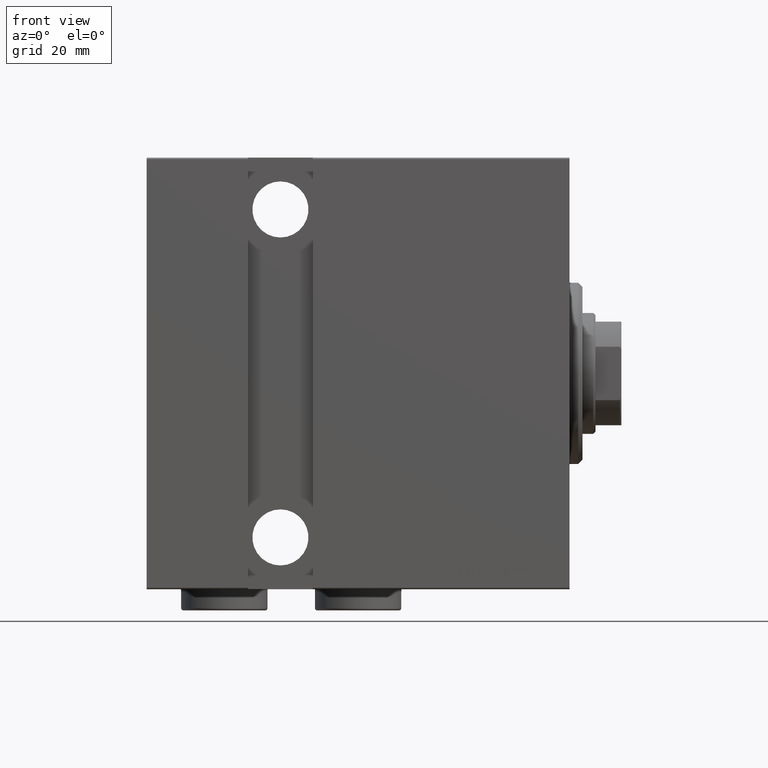
[diagram: clean part render]
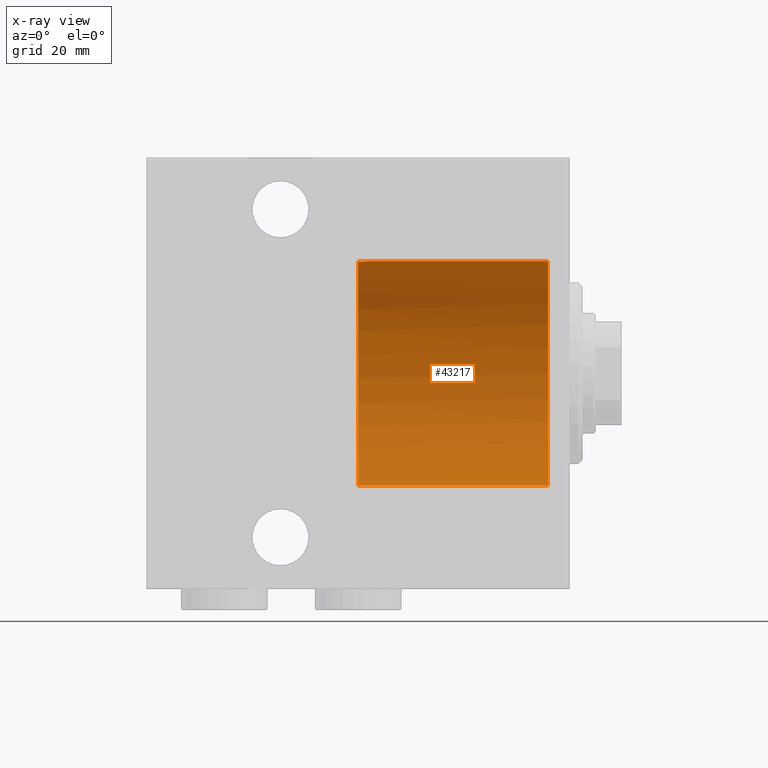
[diagram: x-ray — body ghosted, one internal face saturated and labeled with its STEP entity id]
A machine part, front view, then the same camera in x-ray: the body is ghosted and one INTERNAL B-rep face — a face not visible from any outside direction — is saturated and labeled: STEP entity #43217.
In plain terms, the highlighted cylindrical surface (partial cylindrical patch) has radius 26 mm, axis along (1, 0, -0).
Its self-contained STEP definition (entity closure, byte-faithful):
#484 = CARTESIAN_POINT ( 'NONE',  ( 48.99999999999999289, -2.500000000000014655, 25.87952858921506305 ) ) ;
#503 = EDGE_CURVE ( 'NONE', #13007, #38892, #20038, .T. ) ;
#1852 = DIRECTION ( 'NONE',  ( -1.000000000000000000, -0.000000000000000000, -0.000000000000000000 ) ) ;
#2186 = CARTESIAN_POINT ( 'NONE',  ( 48.99999999999999289, 3.184081677783118585E-15, -26.00000000000000355 ) ) ;
#2411 = LINE ( 'NONE', #2186, #10875 ) ;
#2867 = CARTESIAN_POINT ( 'NONE',  ( 5.000000000000000000, 3.184081677783118585E-15, -26.00000000000000355 ) ) ;
#3893 = CARTESIAN_POINT ( 'NONE',  ( 47.01181660572321874, -1.524339973505214108, 25.95563039927410998 ) ) ;
#4773 = DIRECTION ( 'NONE',  ( -1.000000000000000000, -0.000000000000000000, -0.000000000000000000 ) ) ;
#5250 = CARTESIAN_POINT ( 'NONE',  ( 48.99999999999999289, 0.000000000000000000, 26.00000000000000355 ) ) ;
#5443 = FACE_OUTER_BOUND ( 'NONE', #20611, .T. ) ;
#5701 = LINE ( 'NONE', #5250, #29033 ) ;
#7293 = CARTESIAN_POINT ( 'NONE',  ( 46.50000000000000000, -0.1630576097723743512, 26.00000000000000711 ) ) ;
#7962 = CARTESIAN_POINT ( 'NONE',  ( 48.19349141187429808, -2.371997189775274961, 25.89165113120331441 ) ) ;
#8015 = VERTEX_POINT ( 'NONE', #2867 ) ;
#8186 = CARTESIAN_POINT ( 'NONE',  ( 47.74485731018876322, -2.168200419037787263, 25.90959568801117285 ) ) ;
#8687 = CIRCLE ( 'NONE', #20279, 26.00000000000000355 ) ;
#9302 = EDGE_CURVE ( 'NONE', #8015, #25193, #8687, .T. ) ;
#10422 = ORIENTED_EDGE ( 'NONE', *, *, #503, .F. ) ;
#10441 = EDGE_CURVE ( 'NONE', #13007, #8015, #2411, .T. ) ;
#10875 = VECTOR ( 'NONE', #26690, 1000.000000000000000 ) ;
#11051 = EDGE_CURVE ( 'NONE', #38774, #25193, #5701, .T. ) ;
#11590 = CARTESIAN_POINT ( 'NONE',  ( 47.47439779993504771, -1.987212659998716102, 25.92410514593056803 ) ) ;
#12948 = EDGE_CURVE ( 'NONE', #38774, #38892, #19296, .T. ) ;
#13007 = VERTEX_POINT ( 'NONE', #40171 ) ;
#13222 = ORIENTED_EDGE ( 'NONE', *, *, #11051, .F. ) ;
#14152 = CARTESIAN_POINT ( 'NONE',  ( 46.50000000000000000, 3.819270072627528656E-23, 26.00000000000000355 ) ) ;
#14534 = CARTESIAN_POINT ( 'NONE',  ( 47.11505700197794511, -1.650514707016214944, 25.94782221501753838 ) ) ;
#14981 = CARTESIAN_POINT ( 'NONE',  ( 46.83097200243070546, -1.253715721311804865, 25.97010894603031161 ) ) ;
#16772 = DIRECTION ( 'NONE',  ( 0.000000000000000000, 0.000000000000000000, 1.000000000000000000 ) ) ;
#17405 = DIRECTION ( 'NONE',  ( 0.000000000000000000, 0.000000000000000000, 1.000000000000000000 ) ) ;
#17715 = CARTESIAN_POINT ( 'NONE',  ( 48.66950731452421763, -2.483434565324343257, 25.88114350806910124 ) ) ;
#19296 = B_SPLINE_CURVE_WITH_KNOTS ( 'NONE', 3,
 ( #32249, #7293, #21130, #39278, #39047, #38825, #14981, #3893, #14534, #38597, #11590, #8186, #22025, #7962, #28399, #17715, #42233, #484 ),
 .UNSPECIFIED., .F., .F.,
 ( 4, 2, 2, 2, 2, 2, 2, 2, 4 ),
 ( 0.003911230672558080323, 0.004399693466944587690, 0.004888156261331095057, 0.005376619055717602423, 0.005865081850104109790, 0.006353544644490618024, 0.006842007438877125390, 0.007330470233263633624, 0.007818933027650140991 ),
 .UNSPECIFIED. ) ;
#19395 = ORIENTED_EDGE ( 'NONE', *, *, #10441, .T. ) ;
#20038 = CIRCLE ( 'NONE', #28750, 26.00000000000000355 ) ;
#20279 = AXIS2_PLACEMENT_3D ( 'NONE', #34930, #37441, #16772 ) ;
#20611 = EDGE_LOOP ( 'NONE', ( #10422, #19395, #37416, #13222, #39616 ) ) ;
#20793 = AXIS2_PLACEMENT_3D ( 'NONE', #35018, #4773, #42895 ) ;
#20822 = CARTESIAN_POINT ( 'NONE',  ( 48.99999999999999289, 0.000000000000000000, 0.000000000000000000 ) ) ;
#21130 = CARTESIAN_POINT ( 'NONE',  ( 46.51632050950131969, -0.3286864734209432037, 25.99841633105427263 ) ) ;
#22025 = CARTESIAN_POINT ( 'NONE',  ( 47.89090845172030697, -2.246495650687278189, 25.90284204985404060 ) ) ;
#25193 = VERTEX_POINT ( 'NONE', #28445 ) ;
#26690 = DIRECTION ( 'NONE',  ( -1.000000000000000000, -0.000000000000000000, -0.000000000000000000 ) ) ;
#28399 = CARTESIAN_POINT ( 'NONE',  ( 48.34922403964145587, -2.419331168901877049, 25.88721447395788999 ) ) ;
#28445 = CARTESIAN_POINT ( 'NONE',  ( 5.000000000000000000, 0.000000000000000000, 26.00000000000000355 ) ) ;
#28750 = AXIS2_PLACEMENT_3D ( 'NONE', #20822, #41923, #17405 ) ;
#29033 = VECTOR ( 'NONE', #1852, 1000.000000000000000 ) ;
#32249 = CARTESIAN_POINT ( 'NONE',  ( 46.50000000000000000, 3.819270072627528656E-23, 26.00000000000000355 ) ) ;
#32912 = CYLINDRICAL_SURFACE ( 'NONE', #20793, 26.00000000000000355 ) ;
#34930 = CARTESIAN_POINT ( 'NONE',  ( 5.000000000000000000, 0.000000000000000000, 0.000000000000000000 ) ) ;
#35018 = CARTESIAN_POINT ( 'NONE',  ( 48.99999999999999289, 0.000000000000000000, 0.000000000000000000 ) ) ;
#37416 = ORIENTED_EDGE ( 'NONE', *, *, #9302, .T. ) ;
#37441 = DIRECTION ( 'NONE',  ( -1.000000000000000000, 0.000000000000000000, 0.000000000000000000 ) ) ;
#38597 = CARTESIAN_POINT ( 'NONE',  ( 47.34825722409213711, -1.883866955521380726, 25.93192476069081565 ) ) ;
#38774 = VERTEX_POINT ( 'NONE', #14152 ) ;
#38825 = CARTESIAN_POINT ( 'NONE',  ( 46.75274321844637626, -1.107542503194958172, 25.97684105319528314 ) ) ;
#38892 = VERTEX_POINT ( 'NONE', #43183 ) ;
#39047 = CARTESIAN_POINT ( 'NONE',  ( 46.62747639008234302, -0.8049504077925375700, 25.98797753462838145 ) ) ;
#39278 = CARTESIAN_POINT ( 'NONE',  ( 46.58023207667909560, -0.6491700906549353611, 25.99238859193279083 ) ) ;
#39616 = ORIENTED_EDGE ( 'NONE', *, *, #12948, .T. ) ;
#40171 = CARTESIAN_POINT ( 'NONE',  ( 48.99999999999999289, 3.184081677783118585E-15, -26.00000000000000355 ) ) ;
#41923 = DIRECTION ( 'NONE',  ( -1.000000000000000000, 0.000000000000000000, 0.000000000000000000 ) ) ;
#42233 = CARTESIAN_POINT ( 'NONE',  ( 48.83482759672288154, -2.500000000000015543, 25.87952858921506660 ) ) ;
#42895 = DIRECTION ( 'NONE',  ( 0.000000000000000000, 0.000000000000000000, 1.000000000000000000 ) ) ;
#43183 = CARTESIAN_POINT ( 'NONE',  ( 48.99999999999999289, -2.500000000000014655, 25.87952858921506305 ) ) ;
#43217 = ADVANCED_FACE ( 'NONE', ( #5443 ), #32912, .F. ) ;